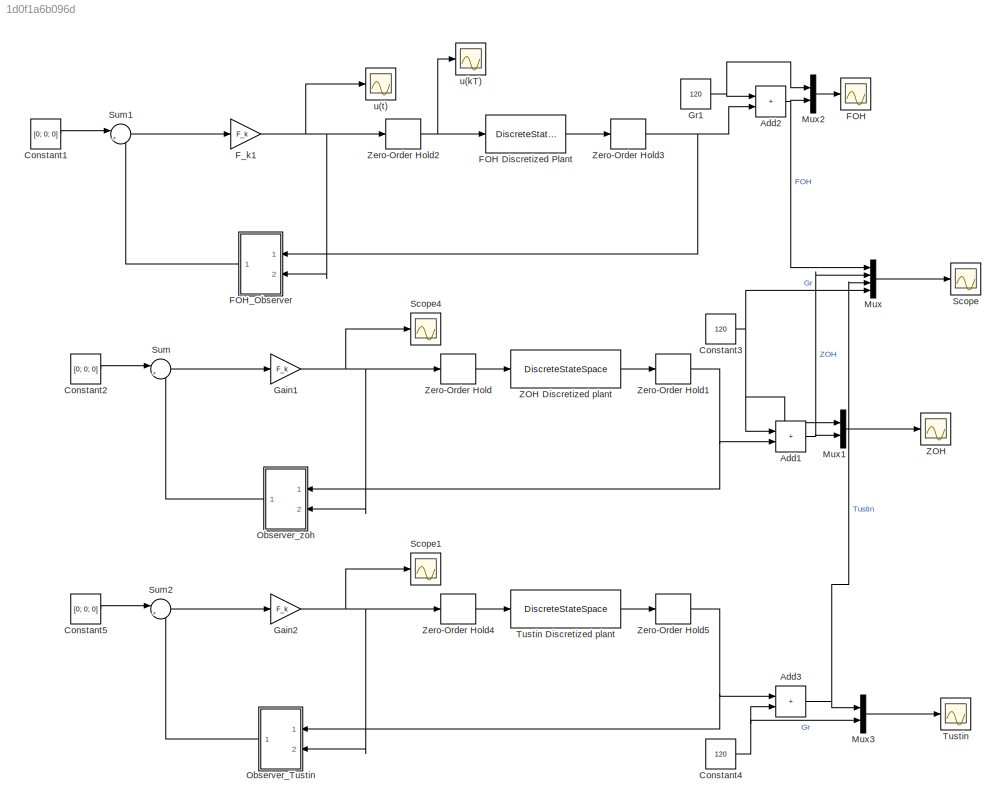
MODEL slx_1d0f1a6b096d
KIND model
CONFIG AbsTol = auto
CONFIG EnableMultiTasking = off
CONFIG FixedStep = auto
CONFIG MaxStep = auto
CONFIG MinStep = auto
CONFIG RelTol = 1e-3
CONFIG SampleTimeConstraint = Unconstrained
CONFIG SolverName = VariableStepAuto
CONFIG StartTime = 0.0
CONFIG StopTime = 10000
BLOCK [Sum] Add1
  IconShape = rectangular
  Ports = [2, 1]
BLOCK [Sum] Add2
  IconShape = rectangular
  Ports = [2, 1]
BLOCK [Sum] Add3
  IconShape = rectangular
  Ports = [2, 1]
BLOCK [Constant] Constant1
  Value = [0; 0; 0]
BLOCK [Constant] Constant2
  Value = [0; 0; 0]
BLOCK [Constant] Constant3
  Value = 120
BLOCK [Constant] Constant4
  Value = 120
BLOCK [Constant] Constant5
  Value = [0; 0; 0]
BLOCK [Scope] FOH
  Floating = off
  NumInputPorts = 1
  Ports = [1]
  ScopeSpecificationString = Simulink.scopes.TimeScopeBlockCfg('CurrentConfiguration', extmgr.ConfigurationSet(extmgr.Configuration('Core','General UI',true,'FigureColor',[0 0 0]),extmgr.Configuration('Core','Source UI',true),extmgr.Configuration('Sources','WiredSimulink',true,'DataLoggingVariableName','ScopeData1'),extmgr.Configuration('Visuals','Time Domain',true,'SerializedDisplays',{struct('MinYLimReal','103.75','MaxYLimR...<+1673ch>
BLOCK [DiscreteStateSpace] FOH Discretized Plant
  A = A_foh
  B = B_foh
  C = C_foh
  D = 0
  InitialCondition = [130;0;0]
  SampleTime = -1
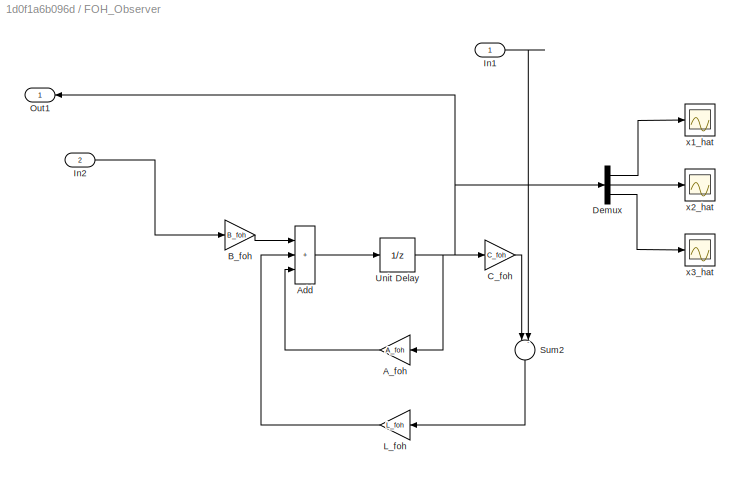
BLOCK [SubSystem] FOH_Observer
  NameLocation = top
  Ports = [2, 1]
  RequestExecContextInheritance = off
BLOCK [Gain] FOH_Observer/A_foh
  Gain = A_foh
  Multiplication = Matrix(K*u)
  NameLocation = top
BLOCK [Sum] FOH_Observer/Add
  IconShape = rectangular
  Inputs = +++
  Ports = [3, 1]
BLOCK [Gain] FOH_Observer/B_foh
  Gain = B_foh
  Multiplication = Matrix(K*u)
BLOCK [Gain] FOH_Observer/C_foh
  Gain = C_foh
  Multiplication = Matrix(K*u)
BLOCK [Demux] FOH_Observer/Demux
  Outputs = 3
  Ports = [1, 3]
BLOCK [Inport] FOH_Observer/In1
BLOCK [Inport] FOH_Observer/In2
  Port = 2
BLOCK [Gain] FOH_Observer/L_foh
  Gain = L_foh
  Multiplication = Matrix(K*u)
  NameLocation = top
BLOCK [Outport] FOH_Observer/Out1
BLOCK [Sum] FOH_Observer/Sum2
  Inputs = |-+
  NameLocation = left
  Ports = [2, 1]
BLOCK [UnitDelay] FOH_Observer/Unit Delay
  HasFrameUpgradeWarning = on
  SampleTime = -1
BLOCK [Scope] FOH_Observer/x1_hat
  Floating = off
  NumInputPorts = 1
  Ports = [1]
  ScopeSpecificationString = Simulink.scopes.TimeScopeBlockCfg('CurrentConfiguration', extmgr.ConfigurationSet(extmgr.Configuration('Core','General UI',true),extmgr.Configuration('Core','Source UI',true),extmgr.Configuration('Sources','WiredSimulink',true,'DataLoggingVariableName','ScopeData1'),extmgr.Configuration('Visuals','Time Domain',true,'SerializedDisplays',{struct('MinYLimReal','-13.38365','MaxYLimReal','120.45284','Y...<+1418ch>
BLOCK [Scope] FOH_Observer/x2_hat
  Floating = off
  NumInputPorts = 1
  Ports = [1]
  ScopeSpecificationString = Simulink.scopes.TimeScopeBlockCfg('CurrentConfiguration', extmgr.ConfigurationSet(extmgr.Configuration('Core','General UI',true),extmgr.Configuration('Core','Source UI',true),extmgr.Configuration('Sources','WiredSimulink',true,'DataLoggingVariableName','ScopeData2'),extmgr.Configuration('Visuals','Time Domain',true,'SerializedDisplays',{struct('MinYLimReal','0.00576','MaxYLimReal','0.00633','YLabe...<+1381ch>
BLOCK [Scope] FOH_Observer/x3_hat
  Floating = off
  NumInputPorts = 1
  Ports = [1]
  ScopeSpecificationString = Simulink.scopes.TimeScopeBlockCfg('CurrentConfiguration', extmgr.ConfigurationSet(extmgr.Configuration('Core','General UI',true),extmgr.Configuration('Core','Source UI',true),extmgr.Configuration('Sources','WiredSimulink',true,'DataLoggingVariableName','ScopeData3'),extmgr.Configuration('Visuals','Time Domain',true,'SerializedDisplays',{struct('MinYLimReal','-0.00071','MaxYLimReal','0.00642','YLab...<+1364ch>
BLOCK [Gain] F_k1
  Gain = F_k
  Multiplication = Matrix(K*u)
BLOCK [Gain] Gain1
  Gain = F_k
  Multiplication = Matrix(K*u)
BLOCK [Gain] Gain2
  Gain = F_k
  Multiplication = Matrix(K*u)
BLOCK [Constant] Gr1
  Value = 120
BLOCK [Mux] Mux
  DisplayOption = bar
  Ports = [4, 1]
BLOCK [Mux] Mux1
  DisplayOption = bar
  Inputs = 2
  Ports = [2, 1]
BLOCK [Mux] Mux2
  DisplayOption = bar
  Inputs = 2
  Ports = [2, 1]
BLOCK [Mux] Mux3
  DisplayOption = bar
  Inputs = 2
  Ports = [2, 1]
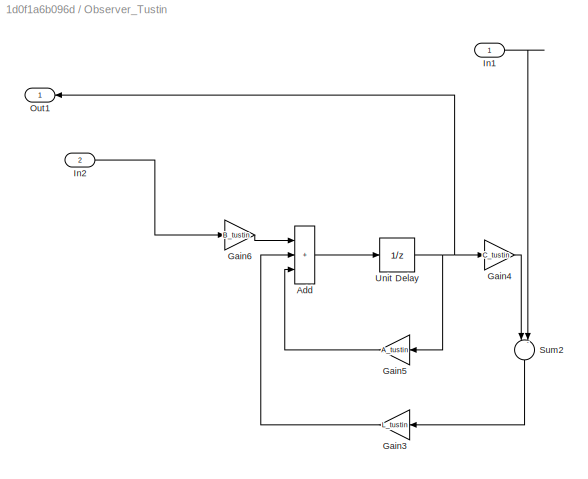
BLOCK [SubSystem] Observer_Tustin
  NameLocation = top
  Ports = [2, 1]
  RequestExecContextInheritance = off
BLOCK [Sum] Observer_Tustin/Add
  IconShape = rectangular
  Inputs = +++
  Ports = [3, 1]
BLOCK [Gain] Observer_Tustin/Gain3
  Gain = L_tustin
  Multiplication = Matrix(K*u)
  NameLocation = top
BLOCK [Gain] Observer_Tustin/Gain4
  Gain = C_tustin
  Multiplication = Matrix(K*u)
BLOCK [Gain] Observer_Tustin/Gain5
  Gain = A_tustin
  Multiplication = Matrix(K*u)
  NameLocation = top
BLOCK [Gain] Observer_Tustin/Gain6
  Gain = B_tustin
  Multiplication = Matrix(K*u)
BLOCK [Inport] Observer_Tustin/In1
BLOCK [Inport] Observer_Tustin/In2
  Port = 2
BLOCK [Outport] Observer_Tustin/Out1
BLOCK [Sum] Observer_Tustin/Sum2
  Inputs = |-+
  NameLocation = left
  Ports = [2, 1]
BLOCK [UnitDelay] Observer_Tustin/Unit Delay
  HasFrameUpgradeWarning = on
  SampleTime = -1
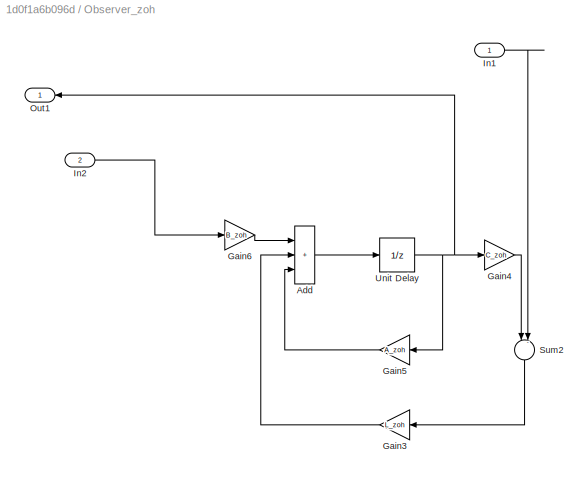
BLOCK [SubSystem] Observer_zoh
  NameLocation = top
  Ports = [2, 1]
  RequestExecContextInheritance = off
BLOCK [Sum] Observer_zoh/Add
  IconShape = rectangular
  Inputs = +++
  Ports = [3, 1]
BLOCK [Gain] Observer_zoh/Gain3
  Gain = L_zoh
  Multiplication = Matrix(K*u)
  NameLocation = top
BLOCK [Gain] Observer_zoh/Gain4
  Gain = C_zoh
  Multiplication = Matrix(K*u)
BLOCK [Gain] Observer_zoh/Gain5
  Gain = A_zoh
  Multiplication = Matrix(K*u)
  NameLocation = top
BLOCK [Gain] Observer_zoh/Gain6
  Gain = B_zoh
  Multiplication = Matrix(K*u)
BLOCK [Inport] Observer_zoh/In1
BLOCK [Inport] Observer_zoh/In2
  Port = 2
BLOCK [Outport] Observer_zoh/Out1
BLOCK [Sum] Observer_zoh/Sum2
  Inputs = |-+
  NameLocation = left
  Ports = [2, 1]
BLOCK [UnitDelay] Observer_zoh/Unit Delay
  HasFrameUpgradeWarning = on
  SampleTime = -1
BLOCK [Scope] Scope
  Floating = off
  NumInputPorts = 1
  Ports = [1]
  ScopeSpecificationString = Simulink.scopes.TimeScopeBlockCfg('CurrentConfiguration', extmgr.ConfigurationSet(extmgr.Configuration('Core','General UI',true),extmgr.Configuration('Core','Source UI',true),extmgr.Configuration('Sources','WiredSimulink',true,'DataLoggingVariableName','ScopeData4'),extmgr.Configuration('Visuals','Time Domain',true,'SerializedDisplays',{struct('MinYLimReal','103.75','MaxYLimReal','266.25','YLabelR...<+1955ch>
BLOCK [Scope] Scope1
  Floating = off
  NumInputPorts = 1
  Ports = [1]
  ScopeSpecificationString = Simulink.scopes.TimeScopeBlockCfg('CurrentConfiguration', extmgr.ConfigurationSet(extmgr.Configuration('Core','General UI',true,'FigureColor',[0 0 0]),extmgr.Configuration('Core','Source UI',true),extmgr.Configuration('Sources','WiredSimulink',true,'DataLoggingVariableName','ScopeData1'),extmgr.Configuration('Visuals','Time Domain',true,'SerializedDisplays',{struct('MinYLimReal','-0.00045','MaxYLi...<+1565ch>
BLOCK [Scope] Scope4
  Floating = off
  NumInputPorts = 1
  Ports = [1]
  ScopeSpecificationString = Simulink.scopes.TimeScopeBlockCfg('CurrentConfiguration', extmgr.ConfigurationSet(extmgr.Configuration('Core','General UI',true,'FigureColor',[0 0 0]),extmgr.Configuration('Core','Source UI',true),extmgr.Configuration('Sources','WiredSimulink',true,'DataLoggingVariableName','ScopeData2'),extmgr.Configuration('Visuals','Time Domain',true,'SerializedDisplays',{struct('MinYLimReal','-0.00053','MaxYLi...<+1565ch>
BLOCK [Sum] Sum
  Inputs = |++
  Ports = [2, 1]
BLOCK [Sum] Sum1
  Inputs = |++
  Ports = [2, 1]
BLOCK [Sum] Sum2
  Inputs = |++
  Ports = [2, 1]
BLOCK [Scope] Tustin
  Floating = off
  NumInputPorts = 1
  Ports = [1]
  ScopeSpecificationString = Simulink.scopes.TimeScopeBlockCfg('CurrentConfiguration', extmgr.ConfigurationSet(extmgr.Configuration('Core','General UI',true,'FigureColor',[0 0 0]),extmgr.Configuration('Core','Source UI',true),extmgr.Configuration('Sources','WiredSimulink',true,'DataLoggingVariableName','ScopeData2'),extmgr.Configuration('Visuals','Time Domain',true,'SerializedDisplays',{struct('MinYLimReal','103.75','MaxYLimR...<+1680ch>
BLOCK [DiscreteStateSpace] Tustin Discretized plant
  A = A_tustin
  B = B_tustin
  C = C_tustin
  D = 0
  InitialCondition = [130;0;0]
  SampleTime = -1
BLOCK [Scope] ZOH
  Floating = off
  NumInputPorts = 1
  Ports = [1]
  ScopeSpecificationString = Simulink.scopes.TimeScopeBlockCfg('CurrentConfiguration', extmgr.ConfigurationSet(extmgr.Configuration('Core','General UI',true,'FigureColor',[0 0 0]),extmgr.Configuration('Core','Source UI',true),extmgr.Configuration('Sources','WiredSimulink',true,'DataLoggingVariableName','ScopeData1'),extmgr.Configuration('Visuals','Time Domain',true,'SerializedDisplays',{struct('MinYLimReal','103.75','MaxYLimR...<+1675ch>
BLOCK [DiscreteStateSpace] ZOH Discretized plant
  A = A_zoh
  B = B_zoh
  C = C_zoh
  D = 0
  InitialCondition = [130;0;0]
  SampleTime = -1
BLOCK [ZeroOrderHold] Zero-Order Hold
  SampleTime = Ts
BLOCK [ZeroOrderHold] Zero-Order Hold1
  SampleTime = Ts
BLOCK [ZeroOrderHold] Zero-Order Hold2
  SampleTime = Ts
BLOCK [ZeroOrderHold] Zero-Order Hold3
  SampleTime = Ts
BLOCK [ZeroOrderHold] Zero-Order Hold4
  SampleTime = Ts
BLOCK [ZeroOrderHold] Zero-Order Hold5
  SampleTime = Ts
BLOCK [Scope] u(kT)
  Floating = off
  NumInputPorts = 1
  Ports = [1]
  ScopeSpecificationString = Simulink.scopes.TimeScopeBlockCfg('CurrentConfiguration', extmgr.ConfigurationSet(extmgr.Configuration('Core','General UI',true,'FigureColor',[0 0 0]),extmgr.Configuration('Core','Source UI',true),extmgr.Configuration('Sources','WiredSimulink',true,'DataLoggingVariableName','ScopeData2'),extmgr.Configuration('Visuals','Time Domain',true,'SerializedDisplays',{struct('MinYLimReal','-0.00053','MaxYLi...<+1565ch>
BLOCK [Scope] u(t)
  Floating = off
  NumInputPorts = 1
  Ports = [1]
  ScopeSpecificationString = Simulink.scopes.TimeScopeBlockCfg('CurrentConfiguration', extmgr.ConfigurationSet(extmgr.Configuration('Core','General UI',true,'FigureColor',[0 0 0]),extmgr.Configuration('Core','Source UI',true),extmgr.Configuration('Sources','WiredSimulink',true,'DataLoggingVariableName','ScopeData3'),extmgr.Configuration('Visuals','Time Domain',true,'SerializedDisplays',{struct('MinYLimReal','-0.00053','MaxYLi...<+1565ch>
NET Add1:1 -> Mux1:2, Mux:2
NET Add2:1 -> Mux2:2, Mux:1
NET Add3:1 -> Mux3:1, Mux:3
LINE Constant1:1 -> Sum1:1
LINE Constant2:1 -> Sum:1
NET Constant3:1 -> Add1:1, Mux1:1, Mux:4
NET Constant4:1 -> Add3:2, Mux3:2
LINE Constant5:1 -> Sum2:1
LINE FOH Discretized Plant:1 -> Zero-Order Hold3:1
LINE FOH_Observer/A_foh:1 -> FOH_Observer/Add:3
LINE FOH_Observer/Add:1 -> FOH_Observer/Unit Delay:1
LINE FOH_Observer/B_foh:1 -> FOH_Observer/Add:1
LINE FOH_Observer/C_foh:1 -> FOH_Observer/Sum2:1
LINE FOH_Observer/Demux:1 -> FOH_Observer/x1_hat:1
LINE FOH_Observer/Demux:2 -> FOH_Observer/x2_hat:1
LINE FOH_Observer/Demux:3 -> FOH_Observer/x3_hat:1
LINE FOH_Observer/In1:1 -> FOH_Observer/Sum2:2
LINE FOH_Observer/In2:1 -> FOH_Observer/B_foh:1
LINE FOH_Observer/L_foh:1 -> FOH_Observer/Add:2
LINE FOH_Observer/Sum2:1 -> FOH_Observer/L_foh:1
NET FOH_Observer/Unit Delay:1 -> FOH_Observer/A_foh:1, FOH_Observer/C_foh:1, FOH_Observer/Demux:1, FOH_Observer/Out1:1
LINE FOH_Observer:1 -> Sum1:2
NET F_k1:1 -> FOH_Observer:2, Zero-Order Hold2:1, u(t):1
NET Gain1:1 -> Observer_zoh:2, Scope4:1, Zero-Order Hold:1
NET Gain2:1 -> Observer_Tustin:2, Scope1:1, Zero-Order Hold4:1
NET Gr1:1 -> Add2:1, Mux2:1
LINE Mux1:1 -> ZOH:1
LINE Mux2:1 -> FOH:1
LINE Mux3:1 -> Tustin:1
LINE Mux:1 -> Scope:1
LINE Observer_Tustin/Add:1 -> Observer_Tustin/Unit Delay:1
LINE Observer_Tustin/Gain3:1 -> Observer_Tustin/Add:2
LINE Observer_Tustin/Gain4:1 -> Observer_Tustin/Sum2:1
LINE Observer_Tustin/Gain5:1 -> Observer_Tustin/Add:3
LINE Observer_Tustin/Gain6:1 -> Observer_Tustin/Add:1
LINE Observer_Tustin/In1:1 -> Observer_Tustin/Sum2:2
LINE Observer_Tustin/In2:1 -> Observer_Tustin/Gain6:1
LINE Observer_Tustin/Sum2:1 -> Observer_Tustin/Gain3:1
NET Observer_Tustin/Unit Delay:1 -> Observer_Tustin/Gain4:1, Observer_Tustin/Gain5:1, Observer_Tustin/Out1:1
LINE Observer_Tustin:1 -> Sum2:2
LINE Observer_zoh/Add:1 -> Observer_zoh/Unit Delay:1
LINE Observer_zoh/Gain3:1 -> Observer_zoh/Add:2
LINE Observer_zoh/Gain4:1 -> Observer_zoh/Sum2:1
LINE Observer_zoh/Gain5:1 -> Observer_zoh/Add:3
LINE Observer_zoh/Gain6:1 -> Observer_zoh/Add:1
LINE Observer_zoh/In1:1 -> Observer_zoh/Sum2:2
LINE Observer_zoh/In2:1 -> Observer_zoh/Gain6:1
LINE Observer_zoh/Sum2:1 -> Observer_zoh/Gain3:1
NET Observer_zoh/Unit Delay:1 -> Observer_zoh/Gain4:1, Observer_zoh/Gain5:1, Observer_zoh/Out1:1
LINE Observer_zoh:1 -> Sum:2
LINE Sum1:1 -> F_k1:1
LINE Sum2:1 -> Gain2:1
LINE Sum:1 -> Gain1:1
LINE Tustin Discretized plant:1 -> Zero-Order Hold5:1
LINE ZOH Discretized plant:1 -> Zero-Order Hold1:1
NET Zero-Order Hold1:1 -> Add1:2, Observer_zoh:1
NET Zero-Order Hold2:1 -> FOH Discretized Plant:1, u(kT):1
NET Zero-Order Hold3:1 -> Add2:2, FOH_Observer:1
LINE Zero-Order Hold4:1 -> Tustin Discretized plant:1
NET Zero-Order Hold5:1 -> Add3:1, Observer_Tustin:1
LINE Zero-Order Hold:1 -> ZOH Discretized plant:1
note: NET lines group one-source signal fan-out (src -> all destinations, sorted); 1:1 wires keep LINE
